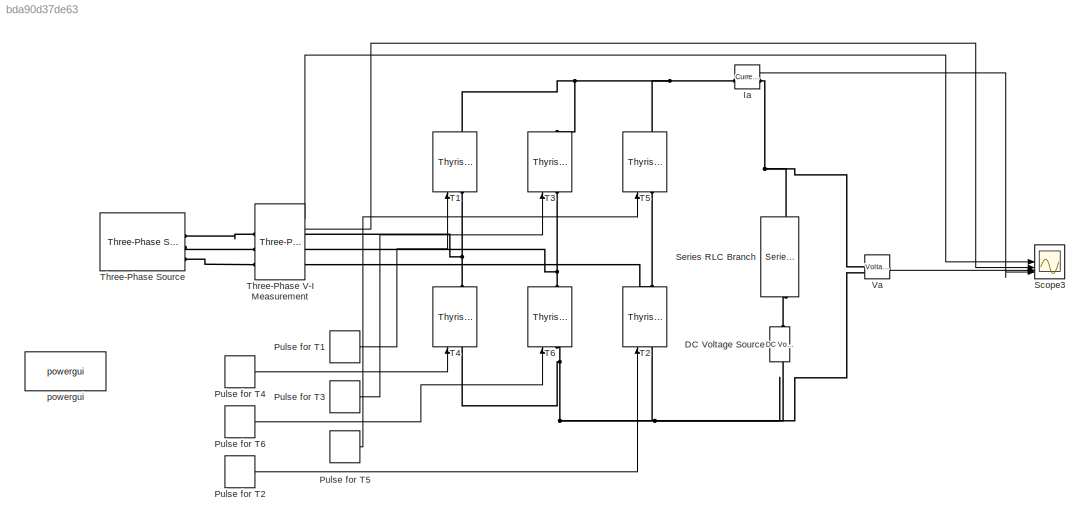
MODEL slx_bda90d37de63
KIND model
CONFIG AbsTol = auto
CONFIG EnableMultiTasking = off
CONFIG FixedStep = auto
CONFIG MaxStep = auto
CONFIG MinStep = auto
CONFIG RelTol = 1e-3
CONFIG SampleTimeConstraint = Unconstrained
CONFIG SolverName = VariableStepAuto
CONFIG StartTime = 0.0
CONFIG StopTime = .1
BLOCK [Reference] DC Voltage Source  REF=spsDCVoltageSourceLib/DC Voltage Source
  LibrarySourceBlock = sps_lib/Sources/DC Voltage Source
  SourceBlock = spsDCVoltageSourceLib/DC Voltage Source
  SourceType = DC Voltage Source
BLOCK [Reference] Ia  REF=spsCurrentMeasurementLib/Current Measurement
  LibrarySourceBlock = sps_lib/Sensors and Measurements/Current Measurement
  NameLocation = top
  SourceBlock = spsCurrentMeasurementLib/Current Measurement
  SourceType = Current Measurement
  UserDataPersistent = on
BLOCK [DiscretePulseGenerator] Pulse for T1 
  Amplitude = 5
  NameLocation = left
  Period = 1/50
  PhaseDelay = (30/360)*0.02
  PulseType = Time based
  PulseWidth = 120/360*100
BLOCK [DiscretePulseGenerator] Pulse for T2
  Amplitude = 5
  NameLocation = left
  Period = 1/50
  PhaseDelay = (90/360)*0.02
  PulseType = Time based
  PulseWidth = 33.33333333
BLOCK [DiscretePulseGenerator] Pulse for T3 
  Amplitude = 5
  NameLocation = left
  Period = 1/50
  PhaseDelay = (150/360)*0.02
  PulseType = Time based
  PulseWidth = 33.33333333
BLOCK [DiscretePulseGenerator] Pulse for T4
  Amplitude = 5
  NameLocation = left
  Period = 1/50
  PhaseDelay = (210/360)*0.02
  PulseType = Time based
  PulseWidth = 33.33333333
BLOCK [DiscretePulseGenerator] Pulse for T5 
  Amplitude = 5
  NameLocation = left
  Period = 1/50
  PhaseDelay = (270/360)*0.02
  PulseType = Time based
  PulseWidth = 33.33333333
BLOCK [DiscretePulseGenerator] Pulse for T6
  Amplitude = 5
  NameLocation = left
  Period = 1/50
  PhaseDelay = (330/360)*0.02
  PulseType = Time based
  PulseWidth = 33.3333333
BLOCK [Scope] Scope3
  ActiveDisplayYMaximum = 423.55760105345479
  ActiveDisplayYMinimum = -423.55759863102935
  DataLoggingVariableName = ScopeData3
  Floating = off
  GraphicalSettings = {"AxesScalingProperties":{"AlignXAxis":"Center","AlignYAxis":"Center","AutoScaleXAxisLimits":false,"AxesScaling":"Manual","AxesScalingNumUpdates":10,"ExpandOnly":true,"ScaleAxesLimitsAtStop":false,"XAxisDataRange":100,"YAxisDataRange":80},"DisplayProperties":{"ColorOrder":["auto","auto","auto","auto","auto","auto","auto","auto","auto","auto","auto","auto","auto","auto","auto","auto","auto","auto",...<+4299ch>
  LayoutDimensionsString = [4,1]
  MultipleDisplayCache = [{"MaxYLimMag":423.55760105345479,"MaxYLimReal":423.55760105345479,"MinYLimMag":0,"MinYLimReal":-423.55759863102935,"PlotAsMagnitudePhase":false,"ShowGrid":true,"ShowLegend":false,"Title":"%<SignalLabel>","YLabel":""},{"MaxYLimMag":466.06022074904018,"MaxYLimReal":465.9894877193309,"MinYLimMag":0,"MinYLimReal":-466.06022074904018,"PlotAsMagnitudePhase":false,"ShowGrid":true,"ShowLegend":false,"Tit...<+463ch>
  NumInputPorts = 4
  ScopeFrameLocation = window
  WasSavedAsWebScope = on
  WindowPosition = [0.000000,36.000000,1536.000000,793.000000,]
BLOCK [Reference] Series RLC Branch  REF=spsSeriesRLCBranchLib/Series RLC Branch
  LibrarySourceBlock = sps_lib/Passives/Series RLC Branch
  NameLocation = left
  SourceBlock = spsSeriesRLCBranchLib/Series RLC Branch
  SourceType = Series RLC Branch
BLOCK [Reference] T1  REF=spsThyristorLib/Thyristor
  LibrarySourceBlock = sps_lib/Power Electronics/Thyristor
  NameLocation = right
  SourceBlock = spsThyristorLib/Thyristor
  SourceType = Thyristor
BLOCK [Reference] T2  REF=spsThyristorLib/Thyristor
  LibrarySourceBlock = sps_lib/Power Electronics/Thyristor
  NameLocation = right
  SourceBlock = spsThyristorLib/Thyristor
  SourceType = Thyristor
BLOCK [Reference] T3  REF=spsThyristorLib/Thyristor
  LibrarySourceBlock = sps_lib/Power Electronics/Thyristor
  NameLocation = right
  SourceBlock = spsThyristorLib/Thyristor
  SourceType = Thyristor
BLOCK [Reference] T4  REF=spsThyristorLib/Thyristor
  LibrarySourceBlock = sps_lib/Power Electronics/Thyristor
  NameLocation = right
  SourceBlock = spsThyristorLib/Thyristor
  SourceType = Thyristor
BLOCK [Reference] T5  REF=spsThyristorLib/Thyristor
  LibrarySourceBlock = sps_lib/Power Electronics/Thyristor
  NameLocation = right
  SourceBlock = spsThyristorLib/Thyristor
  SourceType = Thyristor
BLOCK [Reference] T6  REF=spsThyristorLib/Thyristor
  LibrarySourceBlock = sps_lib/Power Electronics/Thyristor
  NameLocation = right
  SourceBlock = spsThyristorLib/Thyristor
  SourceType = Thyristor
BLOCK [Reference] Three-Phase Source  REF=spsThreePhaseSourceLib/Three-Phase Source
  LibrarySourceBlock = sps_lib/Sources/Three-Phase Source
  SourceBlock = spsThreePhaseSourceLib/Three-Phase Source
  SourceType = Three-Phase Source
BLOCK [Reference] Three-Phase V-I Measurement  REF=spsThreePhaseVIMeasurementLib/Three-Phase
V-I Measurement
  LibrarySourceBlock = sps_lib/Sensors and Measurements/Three-Phase\nV-I Measurement
  SourceBlock = spsThreePhaseVIMeasurementLib/Three-Phase\nV-I Measurement
  SourceType = Three-Phase VI Measurement
BLOCK [Reference] Va  REF=spsVoltageMeasurementLib/Voltage Measurement
  LibrarySourceBlock = sps_lib/Sensors and Measurements/Voltage Measurement
  NameLocation = top
  SourceBlock = spsVoltageMeasurementLib/Voltage Measurement
  SourceType = Voltage Measurement
  UserDataPersistent = on
BLOCK [Reference] powergui  REF=sps_lib/powergui
  LibrarySourceBlock = sps_lib/powergui
  Priority = 1
  SourceBlock = sps_lib/powergui
  SourceType = PSB option menu block
LINE Ia:1 -> Scope3:4
LINE Pulse for T1 :1 -> T1:1
LINE Pulse for T2:1 -> T2:1
LINE Pulse for T3 :1 -> T3:1
LINE Pulse for T4:1 -> T4:1
LINE Pulse for T5 :1 -> T5:1
LINE Pulse for T6:1 -> T6:1
LINE Three-Phase V-I Measurement:1 -> Scope3:1
LINE Three-Phase V-I Measurement:2 -> Scope3:2
LINE Va:1 -> Scope3:3
PNET net1: DC Voltage Source:LConn1 -- T2:LConn1 -- T4:LConn1 -- T6:LConn1 -- Va:LConn2
PLINE DC Voltage Source:RConn1 -- Series RLC Branch:RConn1
PNET net2: Ia:LConn1 -- T1:RConn1 -- T3:RConn1 -- T5:RConn1
PNET net3: Ia:RConn1 -- Series RLC Branch:LConn1 -- Va:LConn1
PNET net4: T1:LConn1 -- T4:RConn1 -- Three-Phase V-I Measurement:RConn1
PNET net5: T2:RConn1 -- T5:LConn1 -- Three-Phase V-I Measurement:RConn3
PNET net6: T3:LConn1 -- T6:RConn1 -- Three-Phase V-I Measurement:RConn2
PLINE Three-Phase Source:RConn1 -- Three-Phase V-I Measurement:LConn1
PLINE Three-Phase Source:RConn2 -- Three-Phase V-I Measurement:LConn2
PLINE Three-Phase Source:RConn3 -- Three-Phase V-I Measurement:LConn3
note: PNET lines group multi-terminal physical nets as a canonical sorted terminal list (undirected conserving connections); 2-terminal nets keep the pairwise PLINE form
